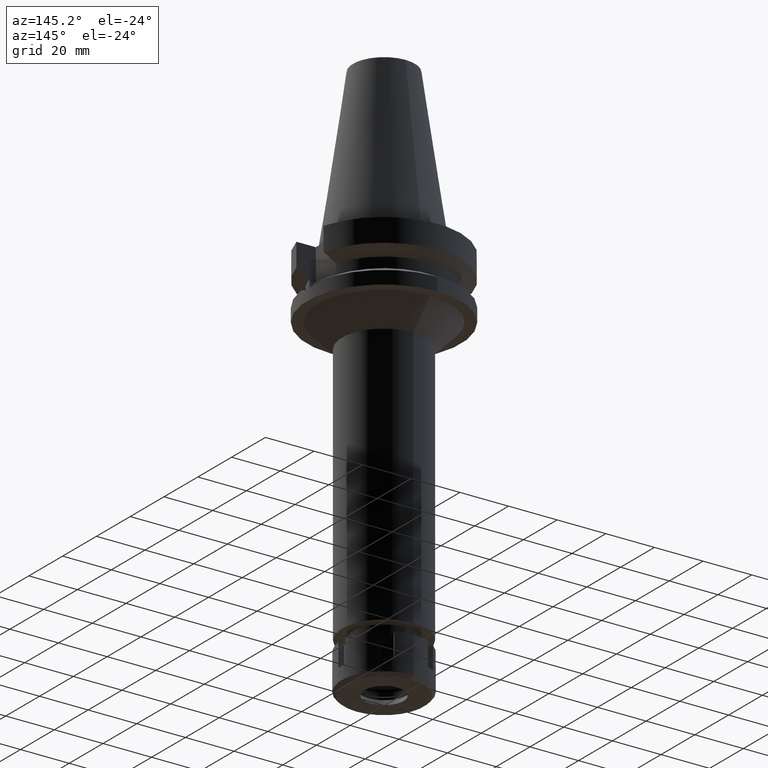
[diagram: clean part render]
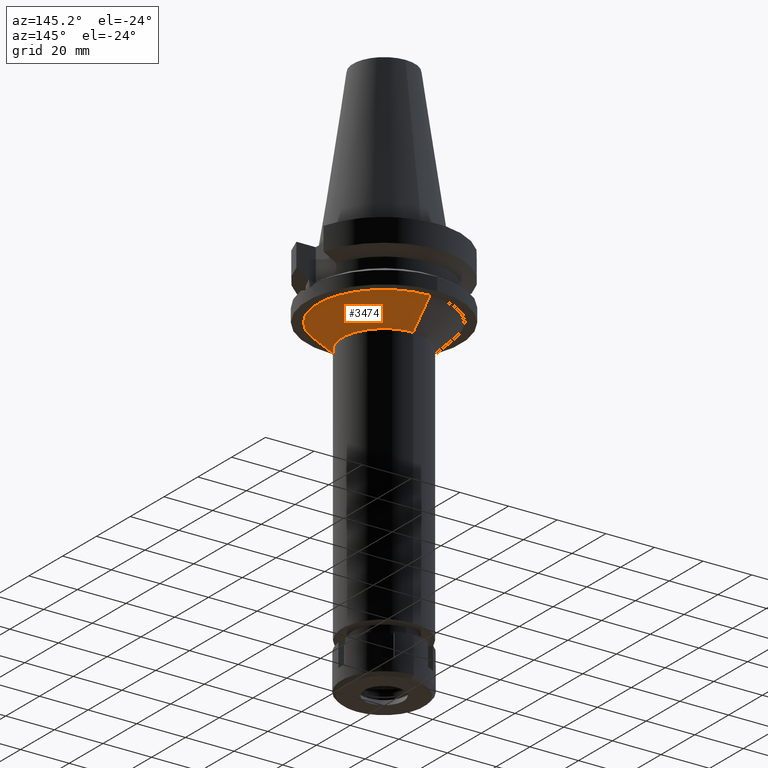
[diagram: same view with one face highlighted and labeled with its STEP entity id]
A machine part, auxiliary view. The second image highlights one B-rep face of the part: STEP entity #3474.
In plain terms, the highlighted conical surface has half-angle 45 deg.
Its self-contained STEP definition (entity closure, byte-faithful):
#46 = VECTOR ( 'NONE', #343, 1000.000000000000114 ) ;
#116 = CARTESIAN_POINT ( 'NONE',  ( 0.0000000000000000000, 0.0000000000000000000, -37.00000000000000000 ) ) ;
#307 = CARTESIAN_POINT ( 'NONE',  ( 0.0000000000000000000, 0.0000000000000000000, -32.00000000000000000 ) ) ;
#343 = DIRECTION ( 'NONE',  ( 0.0000000000000000000, 0.7071067811865474617, -0.7071067811865474617 ) ) ;
#435 = EDGE_CURVE ( 'NONE', #2954, #3439, #2337, .T. ) ;
#490 = VERTEX_POINT ( 'NONE', #1327 ) ;
#521 = AXIS2_PLACEMENT_3D ( 'NONE', #307, #892, #3407 ) ;
#621 = FACE_OUTER_BOUND ( 'NONE', #3093, .T. ) ;
#687 = DIRECTION ( 'NONE',  ( 0.0000000000000000000, 1.000000000000000000, 0.0000000000000000000 ) ) ;
#862 = CONICAL_SURFACE ( 'NONE', #521, 22.25000000000000000, 0.7853981633972997312 ) ;
#892 = DIRECTION ( 'NONE',  ( 0.0000000000000000000, 0.0000000000000000000, 1.000000000000000000 ) ) ;
#901 = DIRECTION ( 'NONE',  ( 0.0000000000000000000, 0.0000000000000000000, -1.000000000000000000 ) ) ;
#942 = CIRCLE ( 'NONE', #1130, 17.25000000000000000 ) ;
#971 = CARTESIAN_POINT ( 'NONE',  ( 0.0000000000000000000, 27.25000000000000000, -27.00000000000000000 ) ) ;
#1040 = EDGE_CURVE ( 'NONE', #2954, #490, #2769, .T. ) ;
#1057 = EDGE_CURVE ( 'NONE', #3439, #2887, #942, .T. ) ;
#1130 = AXIS2_PLACEMENT_3D ( 'NONE', #116, #2855, #687 ) ;
#1208 = DIRECTION ( 'NONE',  ( 0.0000000000000000000, 1.000000000000000000, 0.0000000000000000000 ) ) ;
#1327 = CARTESIAN_POINT ( 'NONE',  ( 0.0000000000000000000, -27.25000000000000000, -27.00000000000000000 ) ) ;
#1451 = ORIENTED_EDGE ( 'NONE', *, *, #3468, .T. ) ;
#1717 = LINE ( 'NONE', #2830, #46 ) ;
#1835 = AXIS2_PLACEMENT_3D ( 'NONE', #3207, #901, #1208 ) ;
#2040 = DIRECTION ( 'NONE',  ( 0.0000000000000000000, -0.7071067811865474617, -0.7071067811865474617 ) ) ;
#2337 = LINE ( 'NONE', #3449, #3548 ) ;
#2603 = ORIENTED_EDGE ( 'NONE', *, *, #1057, .F. ) ;
#2627 = CARTESIAN_POINT ( 'NONE',  ( 0.0000000000000000000, -17.25000000000000000, -37.00000000000000000 ) ) ;
#2769 = CIRCLE ( 'NONE', #1835, 27.25000000000000000 ) ;
#2789 = ORIENTED_EDGE ( 'NONE', *, *, #435, .F. ) ;
#2830 = CARTESIAN_POINT ( 'NONE',  ( 0.0000000000000000000, -27.25000000000000000, -27.00000000000000000 ) ) ;
#2855 = DIRECTION ( 'NONE',  ( 0.0000000000000000000, 0.0000000000000000000, -1.000000000000000000 ) ) ;
#2887 = VERTEX_POINT ( 'NONE', #2627 ) ;
#2954 = VERTEX_POINT ( 'NONE', #971 ) ;
#3093 = EDGE_LOOP ( 'NONE', ( #3589, #1451, #2603, #2789 ) ) ;
#3207 = CARTESIAN_POINT ( 'NONE',  ( 0.0000000000000000000, 0.0000000000000000000, -27.00000000000000000 ) ) ;
#3388 = CARTESIAN_POINT ( 'NONE',  ( 0.0000000000000000000, 17.25000000000000000, -37.00000000000000000 ) ) ;
#3407 = DIRECTION ( 'NONE',  ( 0.0000000000000000000, 1.000000000000000000, 0.0000000000000000000 ) ) ;
#3439 = VERTEX_POINT ( 'NONE', #3388 ) ;
#3449 = CARTESIAN_POINT ( 'NONE',  ( 0.0000000000000000000, 27.25000000000000000, -27.00000000000000000 ) ) ;
#3468 = EDGE_CURVE ( 'NONE', #490, #2887, #1717, .T. ) ;
#3474 = ADVANCED_FACE ( 'NONE', ( #621 ), #862, .T. ) ;
#3548 = VECTOR ( 'NONE', #2040, 1000.000000000000114 ) ;
#3589 = ORIENTED_EDGE ( 'NONE', *, *, #1040, .T. ) ;